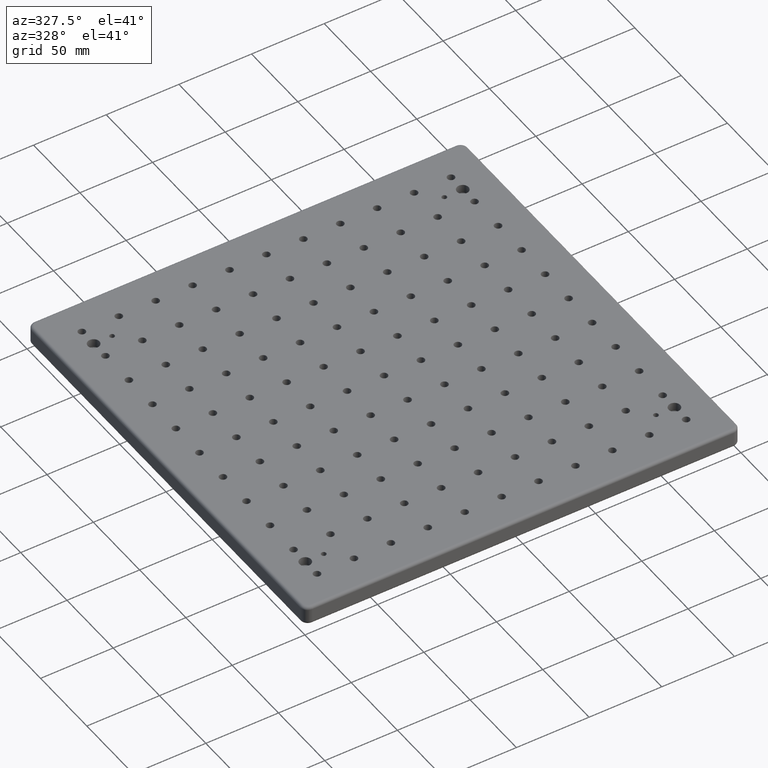
[diagram: clean part render]
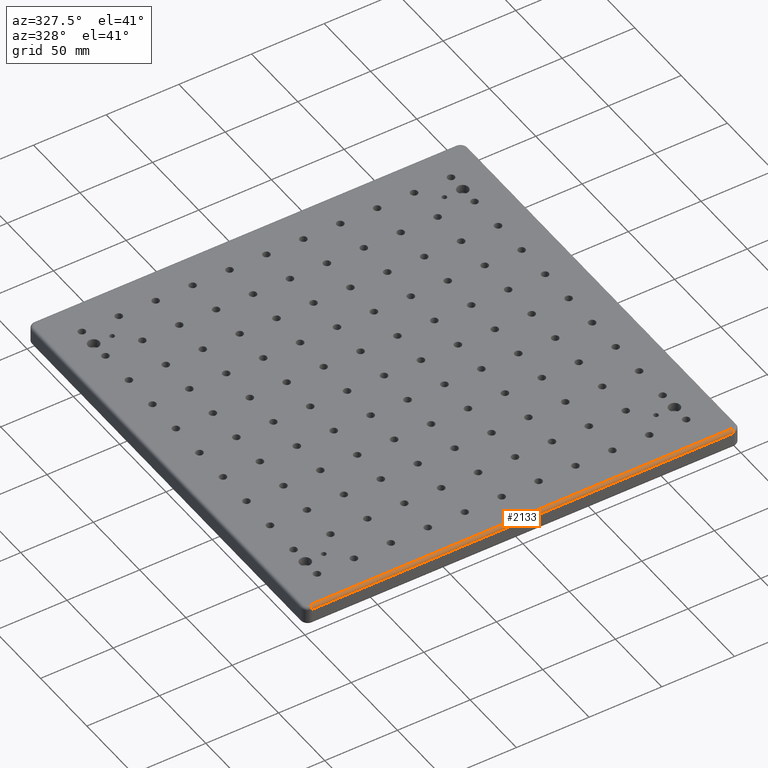
[diagram: same view with one face highlighted and labeled with its STEP entity id]
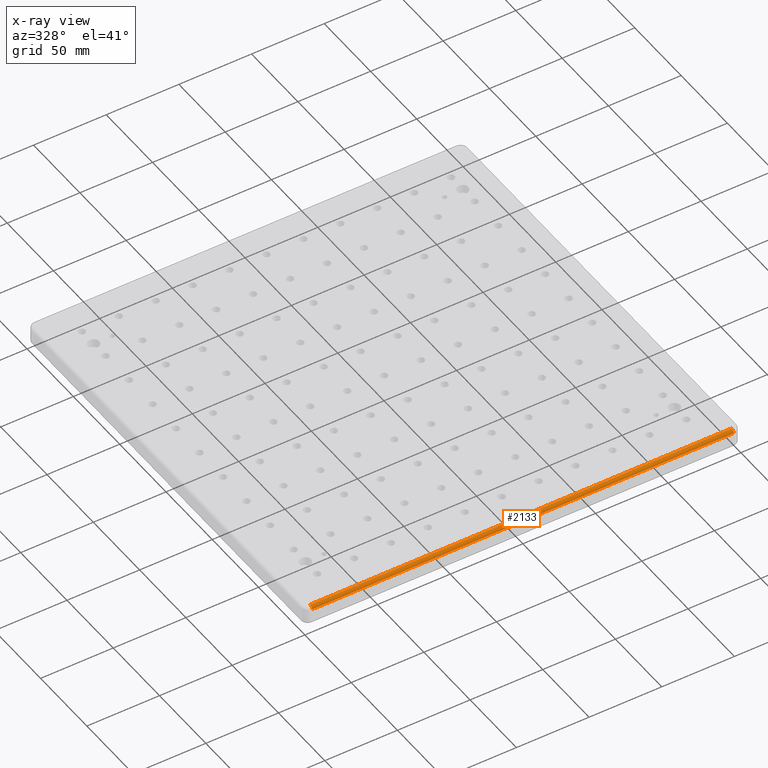
[diagram: x-ray of the same camera — body ghosted, the highlighted face saturated]
A machine part, auxiliary view. The second image highlights one B-rep face of the part: STEP entity #2133.
The next image is the same camera in x-ray: the body ghosted, the highlighted face saturated — about 0% of this face is hidden behind the body in this view.
In plain terms, the highlighted cylindrical surface (edge-blend (fillet) strip) has radius 2 mm, axis along (-1, 0, 0).
Its self-contained STEP definition (entity closure, byte-faithful):
#379 = DIRECTION ( 'NONE',  ( 1.000000000000000000, 0.0000000000000000000, -0.0000000000000000000 ) ) ;
#484 = DIRECTION ( 'NONE',  ( 0.0000000000000000000, 0.0000000000000000000, -1.000000000000000000 ) ) ;
#590 = CARTESIAN_POINT ( 'NONE',  ( 4.999999999999999100, 0.0000000000000000000, -2.000000000000000000 ) ) ;
#596 = LINE ( 'NONE', #2460, #3179 ) ;
#754 = CYLINDRICAL_SURFACE ( 'NONE', #3561, 2.000000000000000000 ) ;
#860 = VERTEX_POINT ( 'NONE', #8643 ) ;
#1069 = VERTEX_POINT ( 'NONE', #2373 ) ;
#1930 = ORIENTED_EDGE ( 'NONE', *, *, #8733, .T. ) ;
#1942 = FACE_OUTER_BOUND ( 'NONE', #2399, .T. ) ;
#2058 = ORIENTED_EDGE ( 'NONE', *, *, #3440, .F. ) ;
#2133 = ADVANCED_FACE ( 'NONE', ( #1942 ), #754, .T. ) ;
#2373 = CARTESIAN_POINT ( 'NONE',  ( 294.9999999999998900, 0.0000000000000000000, -2.000000000000000000 ) ) ;
#2399 = EDGE_LOOP ( 'NONE', ( #1930, #9889, #2058, #6466 ) ) ;
#2460 = CARTESIAN_POINT ( 'NONE',  ( 294.9999999999998900, 2.000000000000001800, 0.0000000000000000000 ) ) ;
#3022 = AXIS2_PLACEMENT_3D ( 'NONE', #9734, #9772, #5523 ) ;
#3179 = VECTOR ( 'NONE', #4074, 1000.000000000000000 ) ;
#3440 = EDGE_CURVE ( 'NONE', #5987, #1069, #3512, .T. ) ;
#3512 = CIRCLE ( 'NONE', #8192, 2.000000000000000000 ) ;
#3561 = AXIS2_PLACEMENT_3D ( 'NONE', #9868, #7372, #4936 ) ;
#3800 = LINE ( 'NONE', #7094, #10588 ) ;
#3881 = CARTESIAN_POINT ( 'NONE',  ( 294.9999999999998900, 2.000000000000001800, 0.0000000000000000000 ) ) ;
#4074 = DIRECTION ( 'NONE',  ( 1.000000000000000000, 0.0000000000000000000, 0.0000000000000000000 ) ) ;
#4936 = DIRECTION ( 'NONE',  ( 0.0000000000000000000, 0.0000000000000000000, 1.000000000000000000 ) ) ;
#5141 = CARTESIAN_POINT ( 'NONE',  ( 294.9999999999998900, 2.000000000000001800, -2.000000000000000000 ) ) ;
#5521 = DIRECTION ( 'NONE',  ( -1.000000000000000000, -0.0000000000000000000, 0.0000000000000000000 ) ) ;
#5523 = DIRECTION ( 'NONE',  ( 0.0000000000000000000, 0.0000000000000000000, -1.000000000000000000 ) ) ;
#5766 = EDGE_CURVE ( 'NONE', #860, #5987, #596, .T. ) ;
#5934 = VERTEX_POINT ( 'NONE', #590 ) ;
#5987 = VERTEX_POINT ( 'NONE', #3881 ) ;
#6252 = CIRCLE ( 'NONE', #3022, 2.000000000000000000 ) ;
#6466 = ORIENTED_EDGE ( 'NONE', *, *, #5766, .F. ) ;
#6623 = EDGE_CURVE ( 'NONE', #1069, #5934, #3800, .T. ) ;
#7094 = CARTESIAN_POINT ( 'NONE',  ( 4.999999999999999100, 0.0000000000000000000, -2.000000000000000000 ) ) ;
#7372 = DIRECTION ( 'NONE',  ( -1.000000000000000000, 0.0000000000000000000, 0.0000000000000000000 ) ) ;
#8192 = AXIS2_PLACEMENT_3D ( 'NONE', #5141, #379, #484 ) ;
#8643 = CARTESIAN_POINT ( 'NONE',  ( 4.999999999999999100, 1.999999999999998200, 0.0000000000000000000 ) ) ;
#8733 = EDGE_CURVE ( 'NONE', #860, #5934, #6252, .T. ) ;
#9734 = CARTESIAN_POINT ( 'NONE',  ( 4.999999999999999100, 1.999999999999998200, -2.000000000000000000 ) ) ;
#9772 = DIRECTION ( 'NONE',  ( 1.000000000000000000, 0.0000000000000000000, -0.0000000000000000000 ) ) ;
#9868 = CARTESIAN_POINT ( 'NONE',  ( 0.0000000000000000000, 2.000000000000001800, -2.000000000000000000 ) ) ;
#9889 = ORIENTED_EDGE ( 'NONE', *, *, #6623, .F. ) ;
#10588 = VECTOR ( 'NONE', #5521, 1000.000000000000000 ) ;